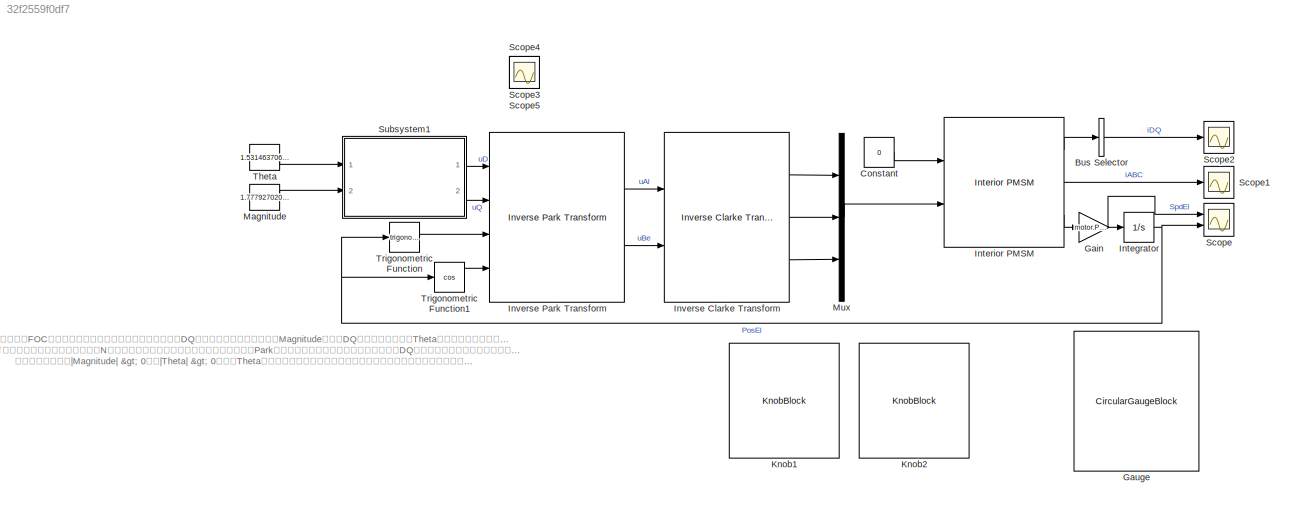
MODEL slx_32f2559f0df7
KIND model
CONFIG AbsTol = auto
CONFIG EnableMultiTasking = off
CONFIG FixedStep = Ts
CONFIG InitFcn = FOC_basic;
CONFIG MaxStep = 0.0005
CONFIG MinStep = auto
CONFIG RelTol = 1e-3
CONFIG SampleTimeConstraint = Unconstrained
CONFIG SolverName = FixedStepAuto
CONFIG StartTime = 0.0
CONFIG StopTime = inf
BLOCK [BusSelector] Bus Selector
  OutputAsBus = on
  OutputSignals = IdSync,IqSync
  Ports = [1, 1]
BLOCK [Constant] Constant
  Value = 0
BLOCK [Gain] Gain
  Gain = motor.Prs
BLOCK [CircularGaugeBlock] Gauge
  ScaleMax = 3.14
  ScaleMin = -3.14
  TickInterval = 1.57
BLOCK [Integrator] Integrator
  Ports = [1, 1]
  WrapState = on
BLOCK [Reference] Interior PMSM  REF=autolibpmsminterior/Interior PMSM
  Ports = [2, 3]
  SourceBlock = autolibpmsminterior/Interior PMSM
  SourceProductBaseCode = PW,MT,UV,VE,VP
  SourceType = Interior PMSM
BLOCK [Reference] Inverse Clarke Transform  REF=mcbcontrolslib/Inverse Clarke Transform
  Ports = [2, 3]
  SourceBlock = mcbcontrolslib/Inverse Clarke Transform
  SourceProductBaseCode = MT
  SourceType = Inverse Clarke Transform
BLOCK [Reference] Inverse Park Transform  REF=mcbcontrolslib/Inverse Park Transform
  Ports = [4, 2]
  SourceBlock = mcbcontrolslib/Inverse Park Transform
  SourceProductBaseCode = MT
  SourceType = Inverse Park Transform
BLOCK [KnobBlock] Knob1
  ScaleMax = 12
  ScaleMin = -12
BLOCK [KnobBlock] Knob2
  ScaleMax = 3.14
  ScaleMin = -3.14
  TickInterval = 1.57
BLOCK [Constant] Magnitude
  Value = 1.777927020417144
BLOCK [Mux] Mux
  DisplayOption = bar
  Inputs = 3
  Ports = [3, 1]
BLOCK [Scope] Scope
  Floating = off
  NumInputPorts = 2
  Ports = [2]
  ScopeSpecificationString = Simulink.scopes.TimeScopeBlockCfg('CurrentConfiguration', extmgr.ConfigurationSet(extmgr.Configuration('Core','General UI',true),extmgr.Configuration('Core','Source UI',true),extmgr.Configuration('Sources','WiredSimulink',true,'DataLoggingVariableName','ScopeData1'),extmgr.Configuration('Visuals','Time Domain',true,'SerializedDisplays',{struct('MinYLimReal','-30.42159','MaxYLimReal','273.7943','YL...<+2051ch>
BLOCK [Scope] Scope1
  Floating = off
  NumInputPorts = 1
  Ports = [1]
  ScopeSpecificationString = Simulink.scopes.TimeScopeBlockCfg('CurrentConfiguration', extmgr.ConfigurationSet(extmgr.Configuration('Core','General UI',true),extmgr.Configuration('Core','Source UI',true),extmgr.Configuration('Sources','WiredSimulink',true,'DataLoggingVariableName','ScopeData2'),extmgr.Configuration('Visuals','Time Domain',true,'SerializedDisplays',{struct('MinYLimReal','-0.70667','MaxYLimReal','0.72098','YLab...<+1454ch>
BLOCK [Scope] Scope2
  Floating = off
  NumInputPorts = 1
  Ports = [1]
  ScopeSpecificationString = Simulink.scopes.TimeScopeBlockCfg('CurrentConfiguration', extmgr.ConfigurationSet(extmgr.Configuration('Core','General UI',true),extmgr.Configuration('Core','Source UI',true),extmgr.Configuration('Sources','WiredSimulink',true,'DataLoggingVariableName','ScopeData3'),extmgr.Configuration('Visuals','Time Domain',true,'SerializedDisplays',{struct('MinYLimReal','-14.72706','MaxYLimReal','13.4803','YLa...<+1428ch>
BLOCK [Scope] Scope3
  Floating = off
  IOType = viewer
  NumInputPorts = 1
  Ports = []
  ScopeSpecificationString = Simulink.scopes.TimeScopeBlockCfg('CurrentConfiguration', extmgr.ConfigurationSet(extmgr.Configuration('Core','General UI',true),extmgr.Configuration('Core','Source UI',true),extmgr.Configuration('Sources','WiredSimulink',true,'DataLoggingVariableName','ScopeData1'),extmgr.Configuration('Visuals','Time Domain',true,'SerializedDisplays',{struct('MinYLimReal','-0.48636','MaxYLimReal','4.59418','YLab...<+1637ch>
BLOCK [Scope] Scope4
  Floating = off
  IOType = viewer
  NumInputPorts = 1
  Ports = []
  ScopeSpecificationString = Simulink.scopes.TimeScopeBlockCfg('CurrentConfiguration', extmgr.ConfigurationSet(extmgr.Configuration('Core','General UI',true),extmgr.Configuration('Core','Source UI',true),extmgr.Configuration('Sources','WiredSimulink',true,'DataLoggingVariableName','ScopeData2'),extmgr.Configuration('Visuals','Time Domain',true,'SerializedDisplays',{struct('MinYLimReal','-12.49998','MaxYLimReal','12.49998','YL...<+1436ch>
BLOCK [Scope] Scope5
  Floating = off
  IOType = viewer
  NumInputPorts = 1
  Ports = []
  ScopeSpecificationString = Simulink.scopes.TimeScopeBlockCfg('CurrentConfiguration', extmgr.ConfigurationSet(extmgr.Configuration('Core','General UI',true),extmgr.Configuration('Core','Source UI',true),extmgr.Configuration('Sources','WiredSimulink',true,'DataLoggingVariableName','ScopeData3'),extmgr.Configuration('Visuals','Time Domain',true,'SerializedDisplays',{struct('MinYLimReal','-12.5','MaxYLimReal','12.5','YLabelReal...<+1498ch>
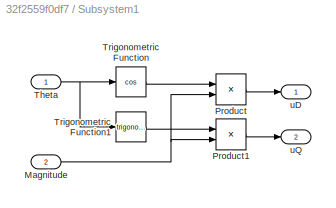
BLOCK [SubSystem] Subsystem1
  Ports = [2, 2]
  RequestExecContextInheritance = off
BLOCK [Inport] Subsystem1/Magnitude
  Port = 2
  SampleTime = Ts
BLOCK [Product] Subsystem1/Product
  Ports = [2, 1]
BLOCK [Product] Subsystem1/Product1
  Ports = [2, 1]
BLOCK [Inport] Subsystem1/Theta
  SampleTime = Ts
BLOCK [Trigonometry] Subsystem1/Trigonometric Function
  Operator = cos
  Ports = [1, 1]
BLOCK [Trigonometry] Subsystem1/Trigonometric Function1
  Ports = [1, 1]
BLOCK [Outport] Subsystem1/uD
BLOCK [Outport] Subsystem1/uQ
  Port = 2
BLOCK [Constant] Theta
  Value = 1.531463706362169
BLOCK [Trigonometry] Trigonometric Function
  Ports = [1, 1]
BLOCK [Trigonometry] Trigonometric Function1
  Operator = cos
  Ports = [1, 1]
ANNOTATION (root): 本模型用于展示FOC的 电压控制 ：通过左侧的两个旋钮可以控制DQ坐标系下电压矢量的幅值（Magnitude）和在DQ坐标系中的角度（Theta），表盘可以显示转子电角度的位置。 本模型中，将转子的电角度位置（ 即永磁体N极方向相对于静止坐标系的角度 ）实时反馈到逆Park变换中去，这样操作后 转子磁极方向便与DQ坐标系绑定在一起了 ，电压矢量与磁极的夹角始终为Theta。 在这种情况下， 当|Magnitude| > 0，且|Theta| > 0 ，由于Theta角一直存在，转子便会一直追着电压矢量跑，转子便连续地转动起来——正转/反转。利用合适的算法，控制Theta和Magnitude的大小，便可以控制转矩和速度。
LINE Bus Selector:1 -> Scope2:1
LINE Constant:1 -> Interior PMSM:1
NET Gain:1 -> Integrator:1, Scope:1
NET Integrator:1 -> Scope:2, Trigonometric Function1:1, Trigonometric Function:1
LINE Interior PMSM:1 -> Bus Selector:1
LINE Interior PMSM:2 -> Scope1:1
LINE Interior PMSM:3 -> Gain:1
LINE Inverse Clarke Transform:1 -> Mux:1
LINE Inverse Clarke Transform:2 -> Mux:2
LINE Inverse Clarke Transform:3 -> Mux:3
LINE Inverse Park Transform:1 -> Inverse Clarke Transform:1
LINE Inverse Park Transform:2 -> Inverse Clarke Transform:2
LINE Magnitude:1 -> Subsystem1:2
LINE Mux:1 -> Interior PMSM:2
NET Subsystem1/Magnitude:1 -> Subsystem1/Product1:2, Subsystem1/Product:2
LINE Subsystem1/Product1:1 -> Subsystem1/uQ:1
LINE Subsystem1/Product:1 -> Subsystem1/uD:1
NET Subsystem1/Theta:1 -> Subsystem1/Trigonometric Function1:1, Subsystem1/Trigonometric Function:1
LINE Subsystem1/Trigonometric Function1:1 -> Subsystem1/Product1:1
LINE Subsystem1/Trigonometric Function:1 -> Subsystem1/Product:1
LINE Subsystem1:1 -> Inverse Park Transform:1
LINE Subsystem1:2 -> Inverse Park Transform:2
LINE Theta:1 -> Subsystem1:1
LINE Trigonometric Function1:1 -> Inverse Park Transform:4
LINE Trigonometric Function:1 -> Inverse Park Transform:3
note: NET lines group one-source signal fan-out (src -> all destinations, sorted); 1:1 wires keep LINE
